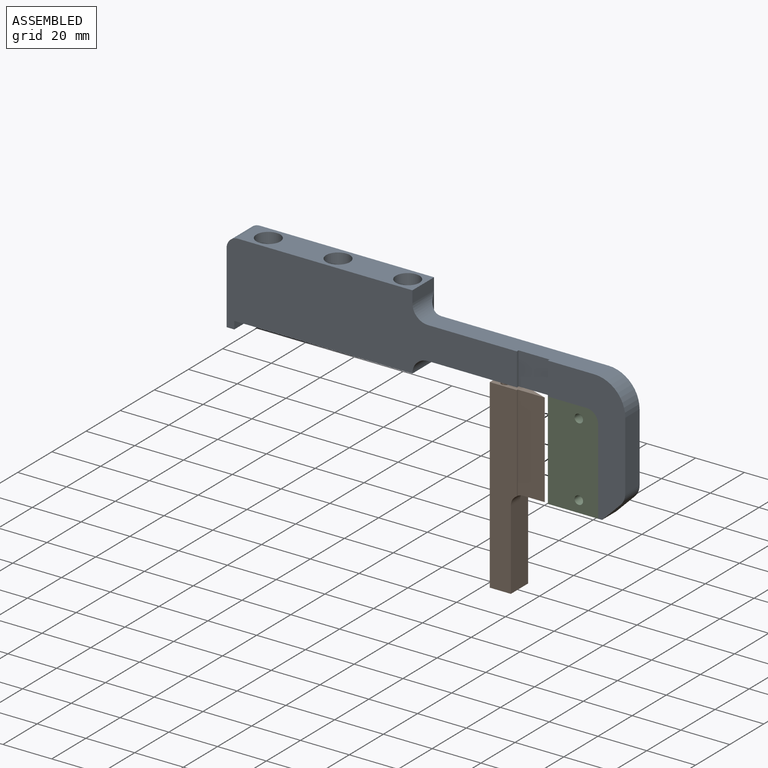
[diagram: assembled view]
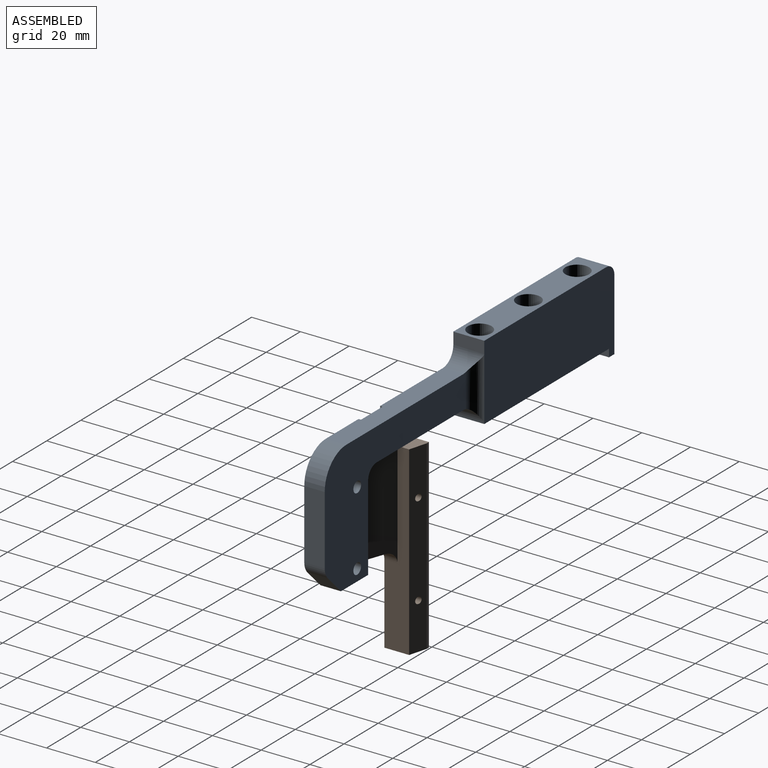
[diagram: assembled view, second angle]
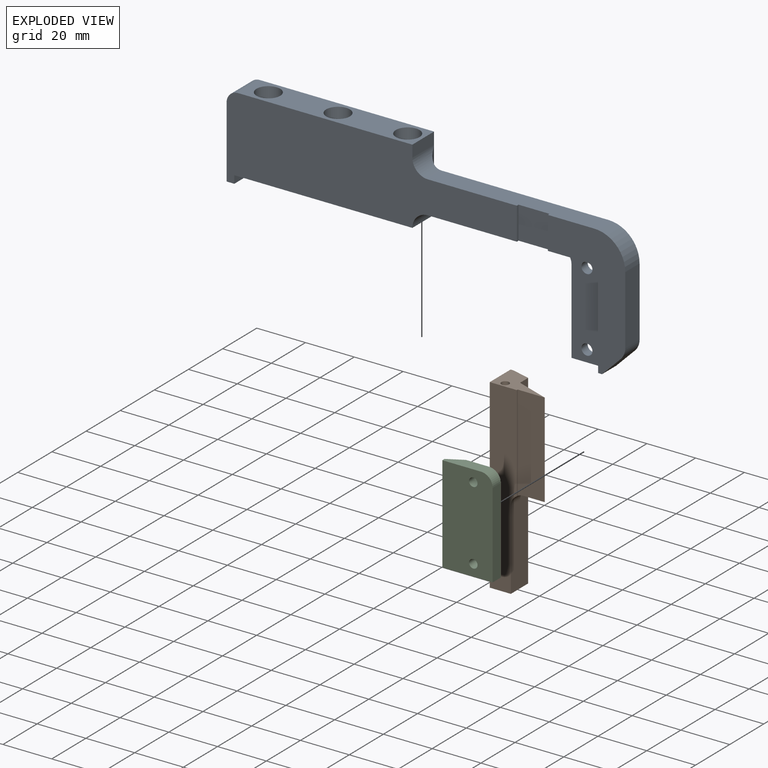
[diagram: exploded view]
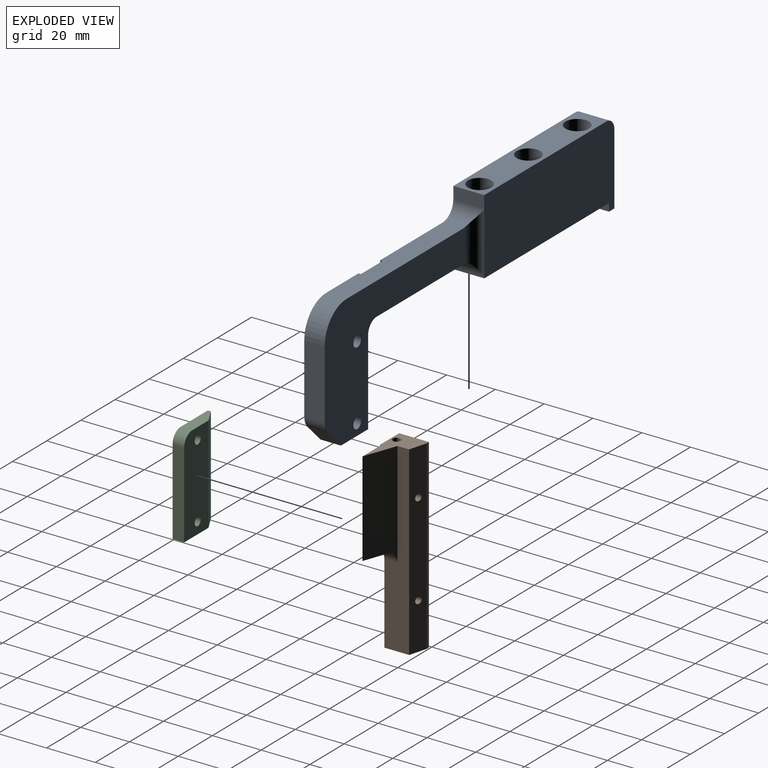
[diagram: exploded view, second angle]
ASSEMBLY  parts=3 mates=2
PART A: 40 faces, bbox 163.5x12.7x64.3 mm
  f0: plane 53.12x31.75mm, normal (0,-1,0), area 789.5mm2, adj f1,f3,f6,f26,f27,f28,f32,f35
  f1: plane 68.26x8.38mm, normal (0,0,1), area 559.5mm2, adj f0,f4,f7,f24,f32,f33,f34,f35
  f2: plane 34.78x3.62mm, normal (-1,0,0), area 125.9mm2, adj f3,f7,f29,f38
  f3: plane 15.88x8.38mm, normal (0,0,-1), area 65mm2, adj f0,f2,f7,f27,f29,f36
  f4: plane 119.06x34.04mm, normal (0,-1,0), area 2945.7mm2, adj f1,f5,f9,f10,f11,f21,f22,f23
  f5: plane 73.03x12.7mm, normal (0,0,-1), area 856.1mm2, adj f4,f8,f12,f15,f18,f21,f25
  f6: plane 28.26x8.38mm, normal (1,0,0), area 236.9mm2, adj f0,f7,f35,f37
  f7: plane 82.36x53.27mm, normal (0,1,0), area 2001.6mm2, adj f1,f2,f3,f6,f24,f25,f26,f30
  f8: plane 76.2x34.04mm, normal (0,1,0), area 2356.8mm2, adj f5,f9,f10,f11,f21,f22,f23,f39
  f9: plane 71.44x12.7mm, normal (0,0,1), area 683.3mm2, adj f4,f8,f14,f17,f20,f22,f23
  f10: plane 12.7x3.18mm, normal (0,0,-1), area 40.3mm2, adj f4,f8,f11,f21
  f11: plane 29.27x12.7mm, normal (-1,0,0), area 371.8mm2, adj f4,f8,f10,f22
  f12: cylinder r=2.75mm len=25.86mm, axis (0,0,1), area 446.8mm2, adj f5,f13
  f13: plane 9.75x9.75mm, normal (0,0,1), area 50.9mm2, adj f12,f14
  f14: cylinder r=4.88mm len=9.75mm, axis (0,0,1), area 153.2mm2, adj f9,f13
  f15: cylinder r=2.75mm len=25.86mm, axis (0,0,1), area 446.8mm2, adj f5,f16
  f16: plane 9.75x9.75mm, normal (0,0,1), area 50.9mm2, adj f15,f17
  f17: cylinder r=4.88mm len=9.75mm, axis (0,0,1), area 153.2mm2, adj f9,f16
  f18: cylinder r=2.75mm len=25.86mm, axis (0,0,1), area 446.8mm2, adj f5,f19
  f19: plane 9.75x9.75mm, normal (0,0,1), area 50.9mm2, adj f18,f20
  f20: cylinder r=4.88mm len=9.75mm, axis (0,0,1), area 153.2mm2, adj f9,f19
  f21: plane 12.7x3.18mm, normal (1,0,0), area 40.3mm2, adj f4,f5,f8,f10
  f22: cylinder r=4.76mm len=12.7mm, axis (0,-1,0), area 95mm2, adj f4,f8,f9,f11
  f23: plane 12.7x4.83mm, normal (1,0,0), area 61.3mm2, adj f4,f8,f9,f24
  f24: cylinder r=6.35mm len=12.7mm, axis (0,-1,0), area 98.7mm2, adj f1,f4,f7,f23,f39
  f25: cylinder r=6.35mm len=12.7mm, axis (0,1,0), area 98.7mm2, adj f4,f5,f7,f26,f39
  f26: plane 65.09x8.38mm, normal (0,0,-1), area 480.3mm2, adj f0,f4,f7,f25,f28,f29,f32,f33
  f27: plane 35.02x4.76mm, normal (-1,0,0), area 166.8mm2, adj f0,f3,f28,f29
  f28: cylinder r=4.76mm len=4.76mm, axis (0,-1,0), area 35.6mm2, adj f0,f26,f27,f29
  f29: plane 39.78x19.29mm, normal (0,-1,0), area 537.1mm2, adj f2,f3,f26,f27,f28,f30,f31,f38
  f30: cylinder r=2.25mm len=4.5mm, axis (0,1,0), area 51.2mm2, adj f7,f29
  f31: cylinder r=2.25mm len=4.5mm, axis (0,1,0), area 51.2mm2, adj f7,f29
  f32: plane 13.34x1mm, normal (-1,0,0), area 13.3mm2, adj f0,f1,f26,f34
  f33: plane 13.34x1mm, normal (1,0,0), area 13.3mm2, adj f1,f4,f26,f34
  f34: plane 13.34x12.7mm, normal (0,-1,0), area 169.4mm2, adj f1,f26,f32,f33
  f35: cylinder r=12.7mm len=12.7mm, axis (0,-1,0), area 167.2mm2, adj f0,f1,f6,f7
  f36: plane 8.38x7.67mm, normal (0.71,0,-0.71), area 90.9mm2, adj f0,f3,f7,f37
  f37: cylinder r=6.35mm len=8.38mm, axis (0,-1,0), area 41.8mm2, adj f0,f6,f7,f36
  f38: cylinder r=5mm len=5mm, axis (0,1,0), area 28.4mm2, adj f2,f7,f26,f29
  f39: cylinder r=5mm len=26.04mm, axis (0,0,1), area 129.8mm2, adj f7,f8,f24,f25
PART B: 23 faces, bbox 22.3x76.4x12.3 mm
  f0: cylinder r=1.6mm len=76.2mm, axis (0,-1,0), area 753.2mm2, adj f9,f10,f21,f22
  f1: plane 76.2x12.19mm, normal (-1,0,0), area 900mm2, adj f2,f8,f9,f10,f12,f14,f16,f18
  f2: plane 76.2x11.11mm, normal (0,0,-1), area 758.5mm2, adj f1,f3,f6,f9,f10,f20
  f3: plane 39.35x0.51mm, normal (1,0,0), area 20mm2, adj f2,f4,f9,f20
  f4: plane 39.35x11.08mm, normal (0,0,-1), area 429.9mm2, adj f3,f5,f9,f19,f20
  f5: plane 43.53x13.55mm, normal (0.34,0,0.94), area 563.8mm2, adj f4,f6,f9,f19,f20
  f6: plane 76.2x10.16mm, normal (1,0,0), area 539.2mm2, adj f2,f5,f7,f9,f10,f20
  f7: plane 76.36x7.52mm, normal (0.27,0,0.96), area 570.4mm2, adj f6,f8,f9,f10,f21,f22
  f8: plane 76.2x1.27mm, normal (0,0,1), area 96.8mm2, adj f1,f7,f9,f10
  f9: plane 22.19x12.19mm, normal (0,-1,0), area 124.2mm2, adj f0,f1,f2,f3,f4,f5,f6,f7
  f10: plane 12.19x8.64mm, normal (0,1,0), area 89.8mm2, adj f0,f1,f2,f6,f7,f8
  f11: cone r=0mm half-angle=59deg, axis (-1,0,0), area 11.2mm2, adj f12
  f12: cylinder r=1.75mm len=6.05mm, axis (-1,0,0), area 66.5mm2, adj f1,f11
  f13: cone r=0mm half-angle=59deg, axis (-1,0,0), area 11.2mm2, adj f14
  f14: cylinder r=1.75mm len=6.05mm, axis (-1,0,0), area 66.5mm2, adj f1,f13
  f15: cone r=0mm half-angle=59deg, axis (-1,0,0), area 5.7mm2, adj f16
  f16: cylinder r=1.25mm len=6.35mm, axis (-1,0,0), area 49.9mm2, adj f1,f15
  f17: cone r=0mm half-angle=59deg, axis (-1,0,0), area 5.7mm2, adj f18
  f18: cylinder r=1.25mm len=6.35mm, axis (-1,0,0), area 49.9mm2, adj f1,f17
  f19: plane 8.79x3.17mm, normal (0,1,0), area 13.9mm2, adj f4,f5,f20
  f20: cylinder r=4.76mm len=5.4mm, axis (0,0,-1), area 34.5mm2, adj f2,f3,f4,f5,f6,f19
  f21: cylinder r=1.35mm len=8.49mm, axis (0,0,1), area 65.5mm2, adj f0,f7
  f22: cylinder r=1.35mm len=8.49mm, axis (0,0,1), area 65.5mm2, adj f0,f7
PART C: 10 faces, bbox 20.6x4.8x39.8 mm
  f0: plane 39.78x14.28mm, normal (0,-1,0), area 543.8mm2, adj f1,f2,f3,f6,f7,f8,f9
  f1: plane 15.86x4.76mm, normal (0,0,-1), area 64.5mm2, adj f0,f4,f5,f6,f9
  f2: plane 35.02x4.76mm, normal (1,0,0), area 166.8mm2, adj f0,f3,f5,f9
  f3: plane 20.62x4.76mm, normal (0,0,1), area 87.1mm2, adj f0,f2,f4,f5,f6
  f4: plane 39.78x1.27mm, normal (-1,0,0), area 50.5mm2, adj f1,f3,f5,f6
  f5: plane 39.78x20.62mm, normal (0,1,0), area 796.4mm2, adj f1,f2,f3,f4,f7,f8,f9
  f6: plane 39.78x6.35mm, normal (-0.48,-0.88,0), area 288.3mm2, adj f0,f1,f3,f4
  f7: cylinder r=1.75mm len=4.76mm, axis (0,-1,0), area 52.4mm2, adj f0,f5
  f8: cylinder r=1.75mm len=4.76mm, axis (0,-1,0), area 52.4mm2, adj f0,f5
  f9: cylinder r=4.76mm len=4.76mm, axis (0,-1,0), area 35.6mm2, adj f0,f1,f2,f5
PLACE A t=(-4.86,-76.48,-8.73)mm
PLACE B rot(axis=(-1,0,0),90deg) t=(-113.96,-89.18,-20.82)mm
PLACE C rot(axis=(1,0,0),180deg) t=(-79.82,-89.18,-1.6)mm
MATE fastened C.f8 <-> A.f30  axis (0,1,0) through (-77.44,-84.42,13.53)mm
MATE fastened B.f2 <-> A.f4  axis (0,-1,0) through (-108.4,-89.18,17.28)mm
